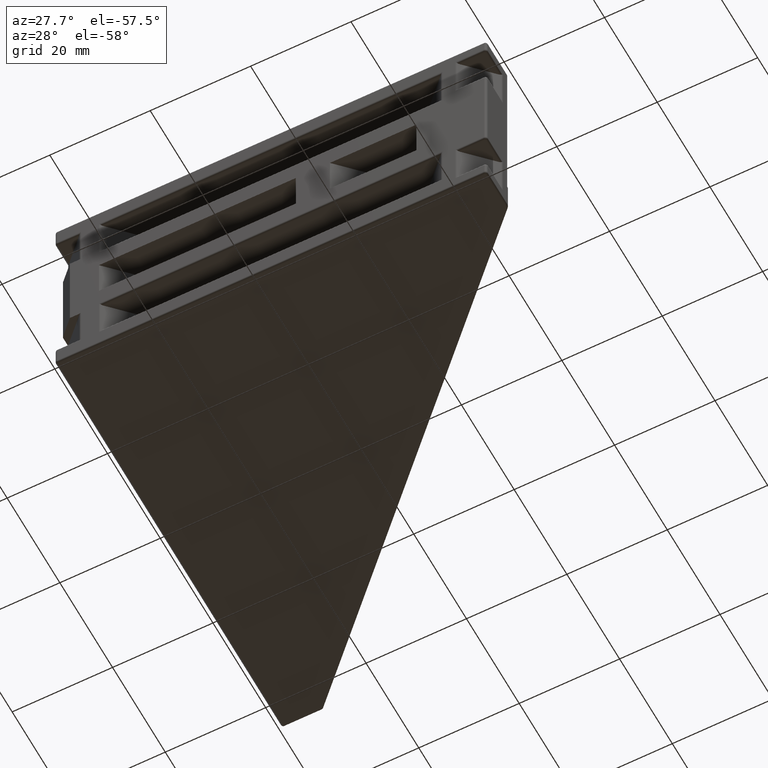
[diagram: clean part render]
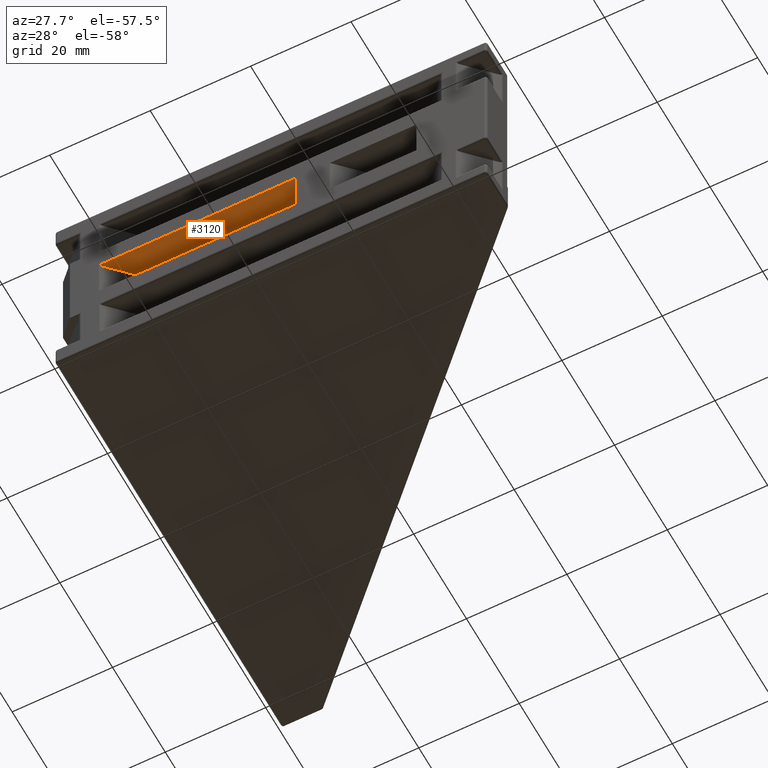
[diagram: same view with one face highlighted and labeled with its STEP entity id]
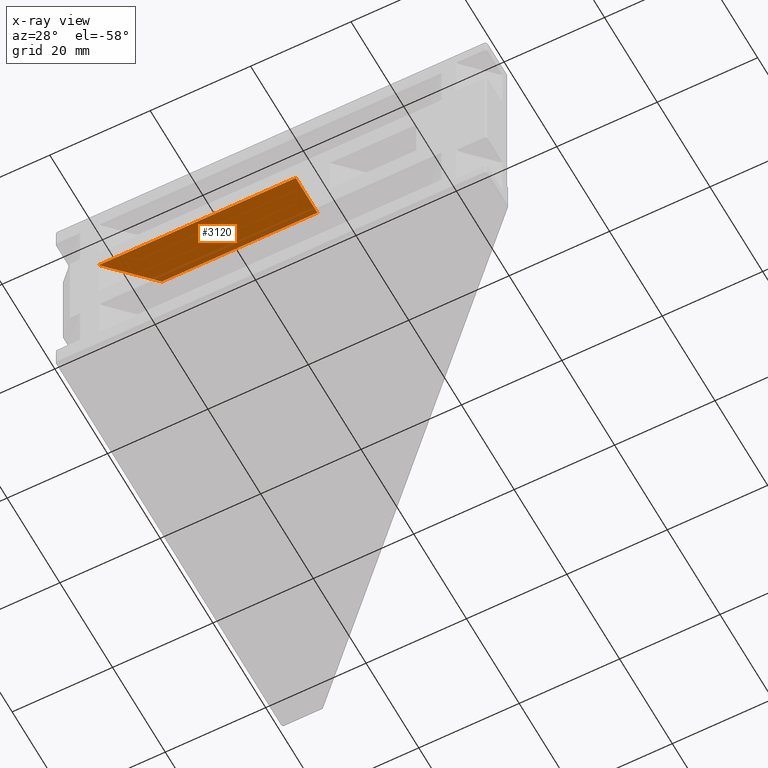
[diagram: x-ray of the same camera — body ghosted, the highlighted face saturated]
A machine part, auxiliary view. The second image highlights one B-rep face of the part: STEP entity #3120.
The next image is the same camera in x-ray: the body ghosted, the highlighted face saturated — about 15% of this face is hidden behind the body in this view.
In plain terms, the highlighted planar face has unit normal (0, 0, 1).
Its self-contained STEP definition (entity closure, byte-faithful):
#197=PLANE('',#3487);
#376=FACE_OUTER_BOUND('',#569,.T.);
#569=EDGE_LOOP('',(#2848,#2849,#2850,#2851));
#711=LINE('',#4862,#994);
#832=LINE('',#5332,#1115);
#852=LINE('',#5370,#1135);
#853=LINE('',#5372,#1136);
#994=VECTOR('',#3849,10.);
#1115=VECTOR('',#4412,10.);
#1135=VECTOR('',#4460,10.);
#1136=VECTOR('',#4463,10.);
#1371=VERTEX_POINT('',#4859);
#1372=VERTEX_POINT('',#4861);
#1499=VERTEX_POINT('',#5329);
#1500=VERTEX_POINT('',#5331);
#1701=EDGE_CURVE('',#1371,#1372,#711,.T.);
#1934=EDGE_CURVE('',#1499,#1500,#832,.T.);
#1954=EDGE_CURVE('',#1372,#1499,#852,.T.);
#1955=EDGE_CURVE('',#1500,#1371,#853,.T.);
#2848=ORIENTED_EDGE('',*,*,#1955,.F.);
#2849=ORIENTED_EDGE('',*,*,#1934,.F.);
#2850=ORIENTED_EDGE('',*,*,#1954,.F.);
#2851=ORIENTED_EDGE('',*,*,#1701,.F.);
#3120=ADVANCED_FACE('',(#376),#197,.F.);
#3487=AXIS2_PLACEMENT_3D('',#5373,#4464,#4465);
#3849=DIRECTION('',(1.,5.16382802151236E-17,0.));
#4412=DIRECTION('',(-1.,0.,0.));
#4460=DIRECTION('',(0.,1.,0.));
#4463=DIRECTION('',(-0.707106781186547,-0.707106781186548,0.));
#4464=DIRECTION('center_axis',(0.,0.,1.));
#4465=DIRECTION('ref_axis',(1.,0.,0.));
#4859=CARTESIAN_POINT('',(8.79999999999997,1.11022302462516E-15,4.2));
#4861=CARTESIAN_POINT('',(48.,2.91948449548205E-15,4.2));
#4862=CARTESIAN_POINT('',(14.8004310985676,8.32667268468867E-16,4.2));
#5329=CARTESIAN_POINT('',(48.,8.2,4.2));
#5331=CARTESIAN_POINT('',(17.,8.2,4.2));
#5332=CARTESIAN_POINT('',(57.8004310985676,8.2,4.2));
#5370=CARTESIAN_POINT('',(48.,8.2,4.2));
#5372=CARTESIAN_POINT('',(8.79999999999997,1.11022302462516E-15,4.2));
#5373=CARTESIAN_POINT('Origin',(29.6008621971351,3.72643012929456,4.2));